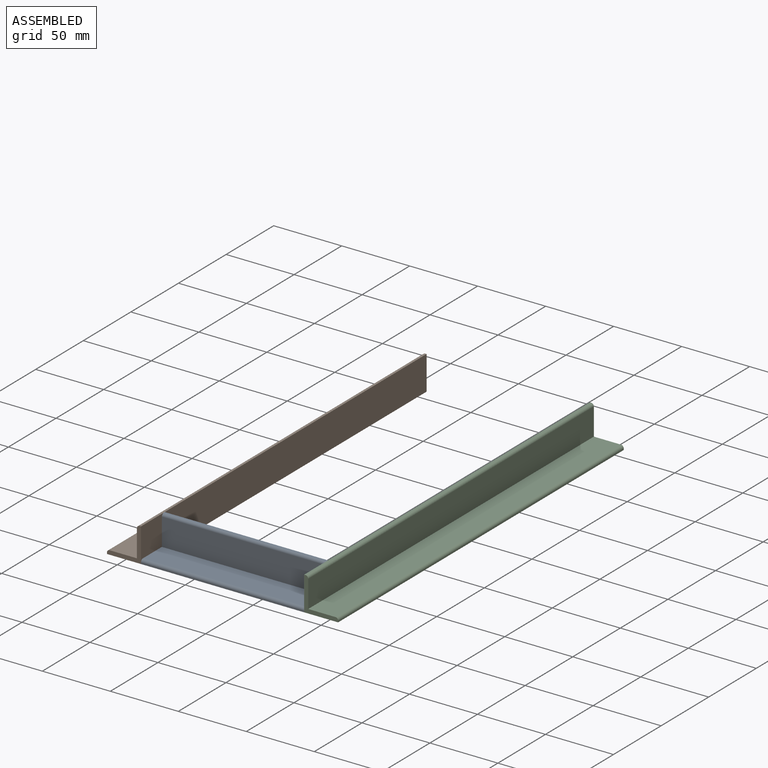
[diagram: assembled view]
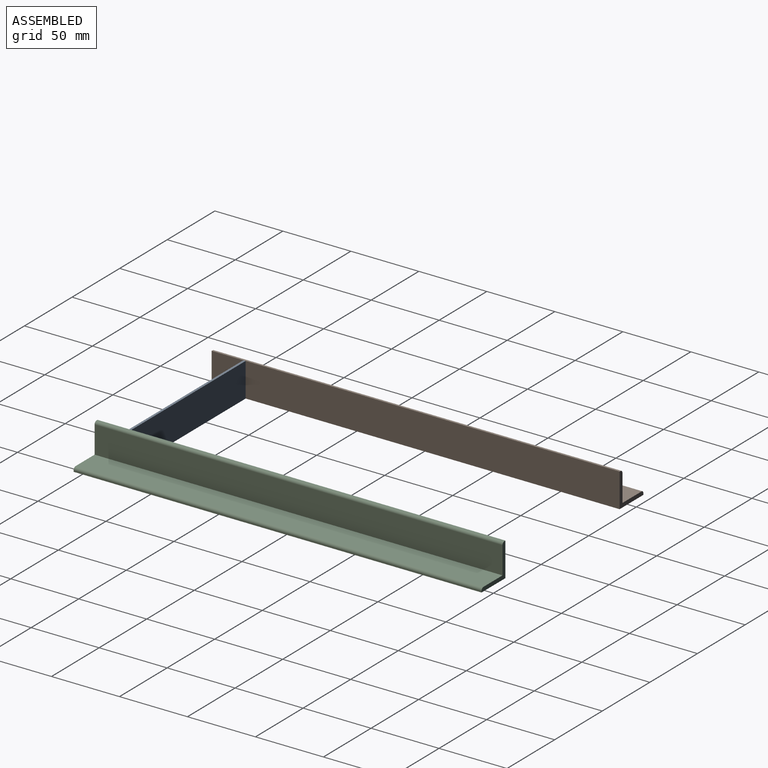
[diagram: assembled view, second angle]
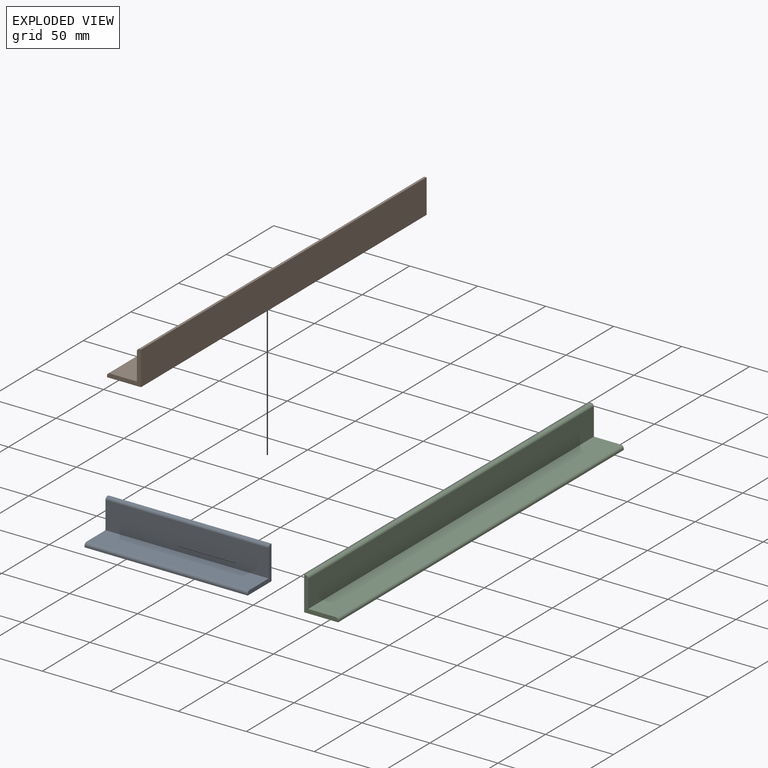
[diagram: exploded view]
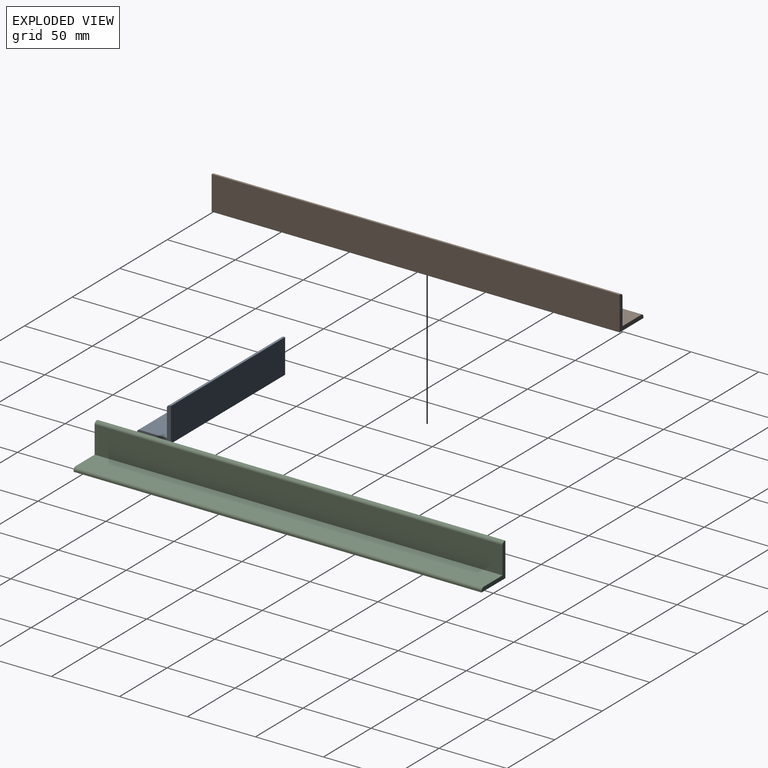
[diagram: exploded view, second angle]
ASSEMBLY  parts=3 mates=6
PART A: 10 faces, bbox 25x120x25 mm
  f0: plane 120x20mm, normal (-1,0,0), area 2400mm2, adj f1,f7,f8,f9
  f1: plane 120x20mm, normal (0,0,1), area 2400mm2, adj f0,f2,f8,f9
  f2: cylinder r=2mm len=120mm, axis (0,1,0), area 377mm2, adj f1,f3,f8,f9
  f3: plane 120x1mm, normal (-1,0,0), area 120mm2, adj f2,f4,f8,f9
  f4: plane 120x25mm, normal (0,0,-1), area 3000mm2, adj f3,f5,f8,f9
  f5: plane 120x25mm, normal (1,0,0), area 3000mm2, adj f4,f6,f8,f9
  f6: plane 120x1mm, normal (0,0,1), area 120mm2, adj f5,f7,f8,f9
  f7: cylinder r=2mm len=120mm, axis (0,1,0), area 377mm2, adj f0,f6,f8,f9
  f8: plane 25x25mm, normal (0,-1,0), area 139.3mm2, adj f0,f1,f2,f3,f4,f5,f6,f7
  f9: plane 25x25mm, normal (0,1,0), area 139.3mm2, adj f0,f1,f2,f3,f4,f5,f6,f7
PART B: 10 faces, bbox 300x25x25 mm
  f0: plane 300x20mm, normal (0,-1,0), area 6000mm2, adj f1,f7,f8,f9
  f1: plane 300x20mm, normal (0,0,1), area 6000mm2, adj f0,f2,f8,f9
  f2: cylinder r=2mm len=300mm, axis (-1,0,0), area 942.5mm2, adj f1,f3,f8,f9
  f3: plane 300x1mm, normal (0,-1,0), area 300mm2, adj f2,f4,f8,f9
  f4: plane 300x25mm, normal (0,0,-1), area 7500mm2, adj f3,f5,f8,f9
  f5: plane 300x25mm, normal (0,1,0), area 7500mm2, adj f4,f6,f8,f9
  f6: plane 300x1mm, normal (0,0,1), area 300mm2, adj f5,f7,f8,f9
  f7: cylinder r=2mm len=300mm, axis (-1,0,0), area 942.5mm2, adj f0,f6,f8,f9
  f8: plane 25x25mm, normal (1,0,0), area 139.3mm2, adj f0,f1,f2,f3,f4,f5,f6,f7
  f9: plane 25x25mm, normal (-1,0,0), area 139.3mm2, adj f0,f1,f2,f3,f4,f5,f6,f7
PART C: same geometry as B
PLACE A rot(axis=(0,0,1),90deg) t=(-132.5,-119.65,-73.49)mm
PLACE B rot(axis=(0,0,-1),90deg) t=(135.89,150,-111.29)mm
PLACE C rot(axis=(0,0,1),90deg) t=(-280.89,-150,-111.29)mm
MATE planar A.f8 <-> C.f5  axis (1,0,0) through (-12.5,-132.27,7.27)mm
MATE planar B.f8 <-> A.f3  axis (0,-1,0) through (-139.77,-150,7.27)mm
MATE planar C.f9 <-> A.f3  axis (0,-1,0) through (-5.23,-150,7.27)mm
MATE planar A.f4 <-> B.f4  axis (0,0,-1) through (-72.5,-137.5,0)mm
MATE planar A.f4 <-> C.f4  axis (0,0,-1) through (-72.5,-137.5,0)mm
MATE planar A.f9 <-> B.f5  axis (-1,0,0) through (-132.5,-132.27,7.27)mm
